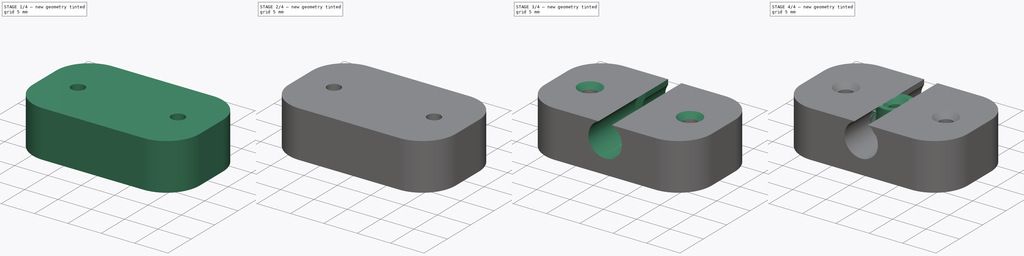
[diagram: build sequence overview — one tinted view per stage of 4, left to right]
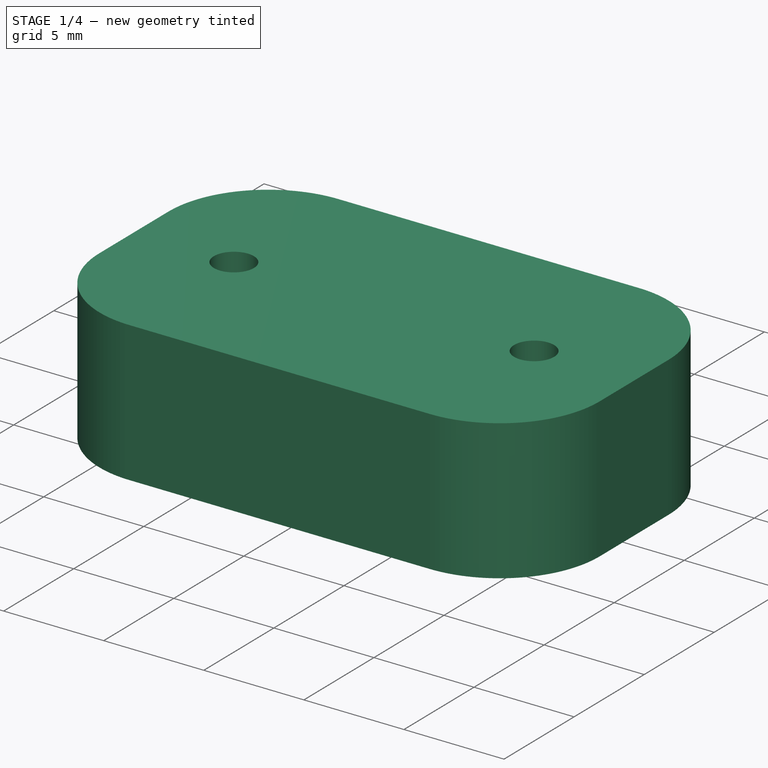
[diagram: stage 1 of 4 — iso view after this stage's code; geometry added in this stage tinted green]
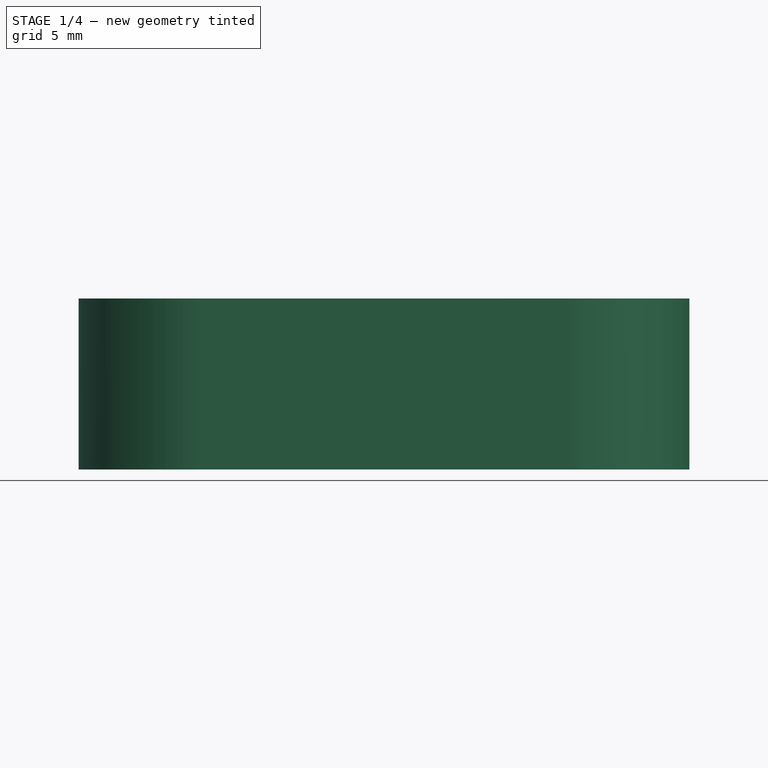
[diagram: stage 1 of 4 — front view after this stage's code; geometry added in this stage tinted green]
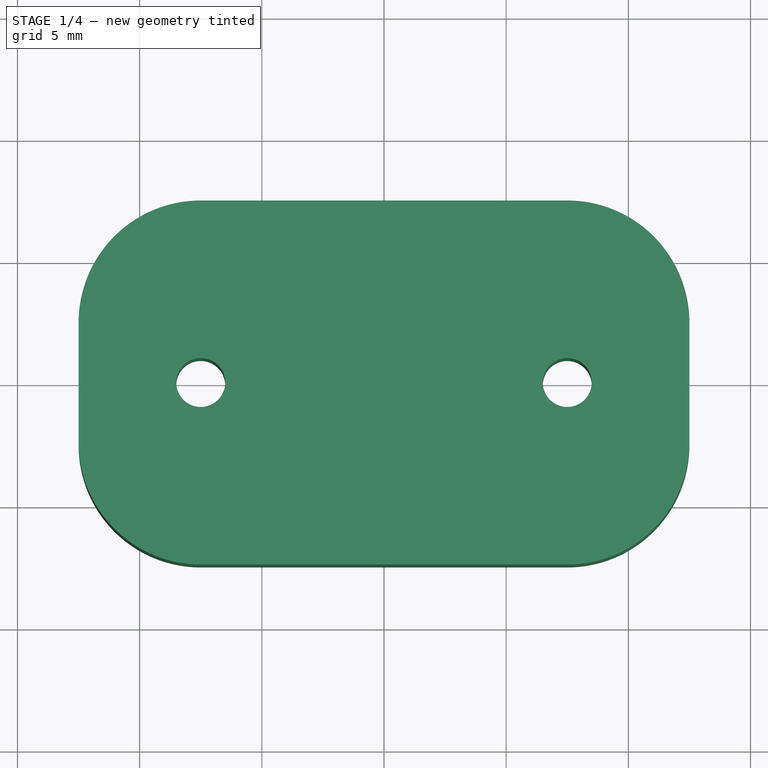
[diagram: stage 1 of 4 — top view after this stage's code; geometry added in this stage tinted green]
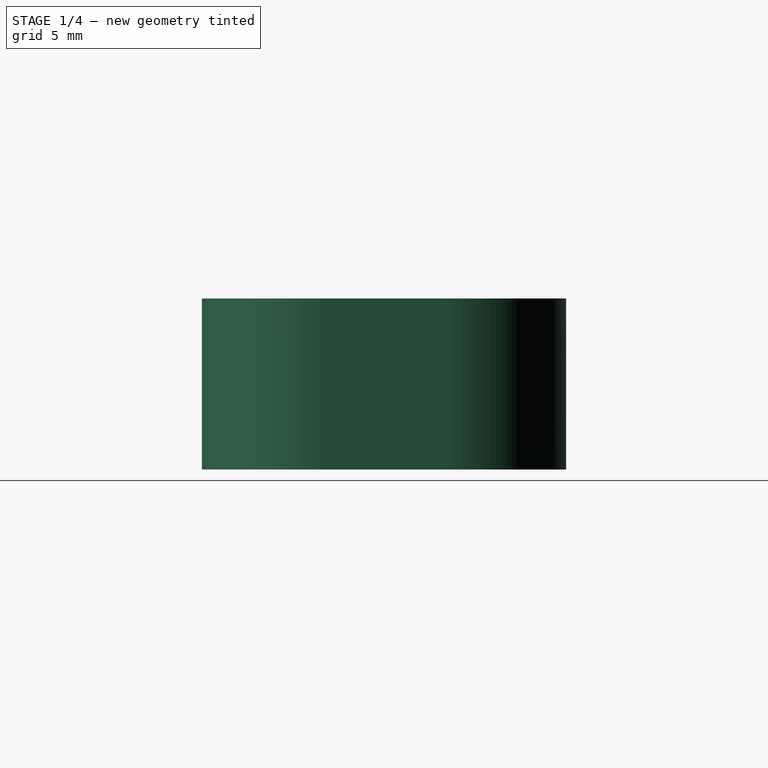
[diagram: stage 1 of 4 — right view after this stage's code; geometry added in this stage tinted green]
FCSTD DOCUMENT  (FreeCAD 0.19R23074 (Git))
Label: cable mount
License: All rights reserved
LicenseURL: http://en.wikipedia.org/wiki/All_rights_reserved
objects: Sketcher::SketchObject×7, PartDesign::Pad×4, PartDesign::Pocket×3, PartDesign::Chamfer×2, PartDesign::Body×2, PartDesign::Fillet×1
note: 29 computed .brp shape members not serialized (recipe doc carries the construction recipe); baked Part::Feature solids carry a one-line shape summary decoded from their .brp

FEATURE [Sketcher::SketchObject] Sketch
  MapMode = 5
  Support = -> [XY_Plane]
  sketch-geometry (5):
    g0: Circle CenterX=0 CenterY=0 CenterZ=0 NormalX=0 NormalY=0 NormalZ=1 AngleXU=0 Radius=1
    g1: ArcOfCircle CenterX=0 CenterY=0 CenterZ=0 NormalX=0 NormalY=0 NormalZ=1 AngleXU=0 Radius=2.5 StartAngle=4.06889 EndAngle=8.49748
    g2: LineSegment StartX=-6.5 StartY=2 StartZ=0 EndX=-1.5 EndY=2 EndZ=0
    g3: LineSegment StartX=-1.5 StartY=-2 StartZ=0 EndX=-6.5 EndY=-2 EndZ=0
    g4: LineSegment StartX=-6.5 StartY=-2 StartZ=0 EndX=-6.5 EndY=2 EndZ=0
  constraints (13):
    c: Coincident(g-1,g0)
    c: Diameter(g0) = 2
    c: Coincident(g1,g0)
    c: Diameter(g1) = 5
    c: Coincident(g3,g4)
    c: Coincident(g4,g2)
    c: Horizontal(g2)
    c: Horizontal(g3)
    c: Symmetric(g2,g3,g-1)
    c: Coincident(g1,g2)
    c: Coincident(g3,g1)
    c: DistanceY(g4,g4) = 4
    c: DistanceX(g2,g2) = 5
FEATURE [PartDesign::Pad] Pad
  Direction = (1,1,1)
  Length = 2
  Length2 = 100
  Profile = -> Sketch
  Refine = true
  Type = 0
FEATURE [PartDesign::Body] Body
  Group = -> [Sketch,Pad,Sketch001,Pad001,Chamfer,Sketch002,Pad002,Sketch003,Pocket,Fillet]
  Origin = -> Origin
  Tip = -> Fillet
FEATURE [Sketcher::SketchObject] Sketch004
  MapMode = 5
  Support = -> [XY_Plane001]
  sketch-geometry (10):
    g0: LineSegment StartX=-7.5 StartY=-7.4516 StartZ=0 EndX=7.5 EndY=-7.4516 EndZ=0
    g1: LineSegment StartX=-7.5 StartY=7.4516 StartZ=0 EndX=7.5 EndY=7.4516 EndZ=0
    g2: Circle CenterX=-7.5 CenterY=-2e-16 CenterZ=0 NormalX=0 NormalY=0 NormalZ=1 AngleXU=0 Radius=1
    g3: Circle CenterX=7.5 CenterY=-2e-16 CenterZ=0 NormalX=0 NormalY=0 NormalZ=1 AngleXU=0 Radius=1
    g4: ArcOfCircle CenterX=7.5 CenterY=2.45162 CenterZ=0 NormalX=0 NormalY=0 NormalZ=1 AngleXU=0 Radius=4.99998 StartAngle=0 EndAngle=1.5708
    g5: ArcOfCircle CenterX=7.5 CenterY=-2.45162 CenterZ=0 NormalX=0 NormalY=0 NormalZ=1 AngleXU=0 Radius=4.99998 StartAngle=4.71239 EndAngle=6.28319
    g6: ArcOfCircle CenterX=-7.50002 CenterY=-2.45162 CenterZ=0 NormalX=0 NormalY=0 NormalZ=1 AngleXU=0 Radius=4.99998 StartAngle=3.14159 EndAngle=4.71239
    g7: ArcOfCircle CenterX=-7.50002 CenterY=2.45162 CenterZ=0 NormalX=0 NormalY=0 NormalZ=1 AngleXU=0 Radius=4.99998 StartAngle=1.57079 EndAngle=3.14159
    g8: LineSegment StartX=-12.5 StartY=2.45162 StartZ=0 EndX=-12.5 EndY=-2.45162 EndZ=0
    g9: LineSegment StartX=12.5 StartY=2.45162 StartZ=0 EndX=12.5 EndY=-2.45162 EndZ=0
  constraints (30):
    c: Horizontal(g0)
    c: Diameter(g3) = 2
    c: Equal(g3,g2)
    c: Symmetric(g1,g0,g-1)
    c: Horizontal(g1)
    c: Vertical(g1,g3)
    c: Vertical(g1,g2)
    c: Symmetric(g2,g3,g-2)
    c: DistanceX(g2,g3) = 15
    c: Vertical(g2,g0)
    c: Coincident(g4,g1)
    c: Coincident(g5,g0)
    c: Coincident(g6,g0)
    c: Coincident(g7,g1)
    c: Equal(g4,g5)
    c: Equal(g5,g6)
    c: Vertical(g1,g4)
    c: Vertical(g4,g5)
    c: Horizontal(g4,g4)
    c: Horizontal(g4,g7)
    c: Horizontal(g7,g7)
    c: Vertical(g7,g6)
    c: Horizontal(g6,g6)
    c: Horizontal(g5,g5)
    c: Coincident(g8,g7)
    c: Coincident(g8,g6)
    c: Vertical(g8)
    c: Coincident(g9,g4)
    c: Coincident(g9,g5)
    c: DistanceX(g7,g2) = 5
FEATURE [PartDesign::Pad] Pad003
  Direction = (1,1,1)
  Length = 7
  Length2 = 100
  Profile = -> Sketch004
  Refine = true
  Type = 0
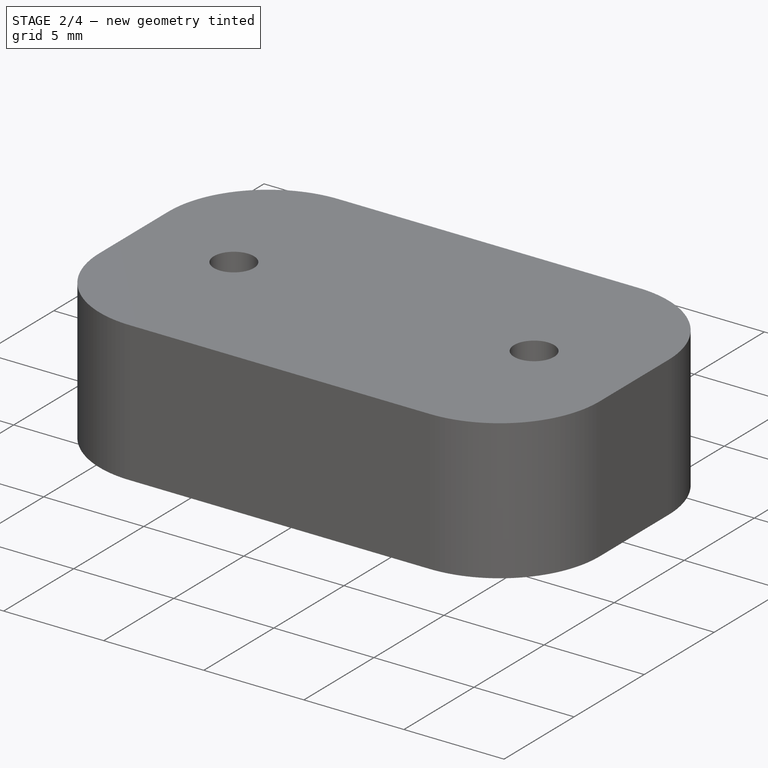
[diagram: stage 2 of 4 — iso view after this stage's code; geometry added in this stage tinted green]
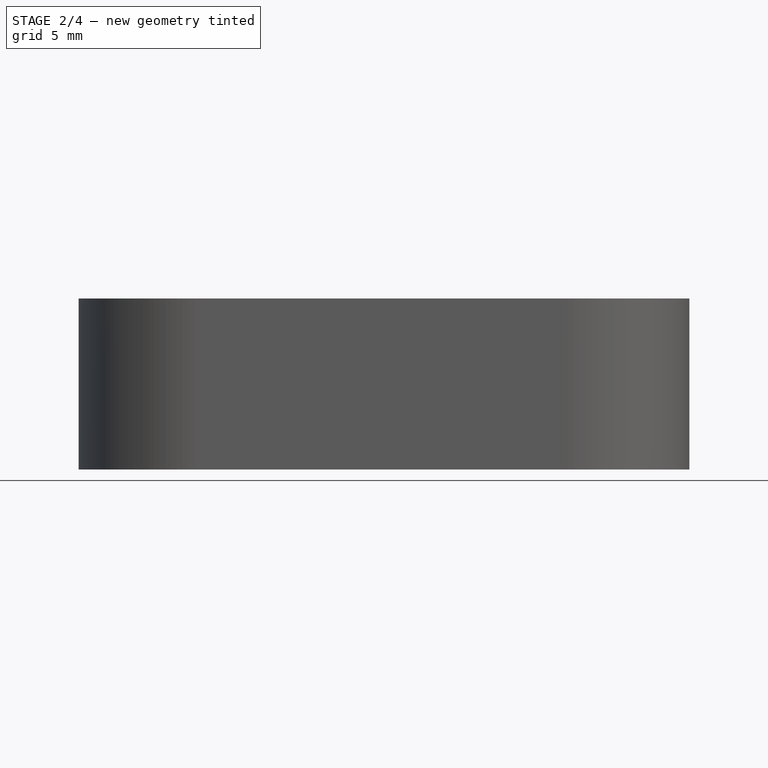
[diagram: stage 2 of 4 — front view after this stage's code; geometry added in this stage tinted green]
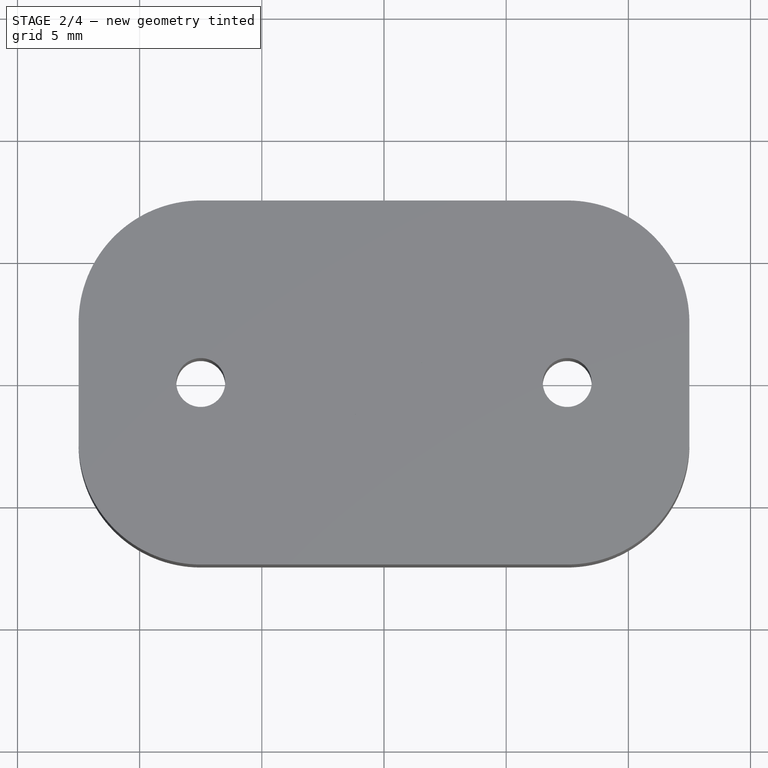
[diagram: stage 2 of 4 — top view after this stage's code; geometry added in this stage tinted green]
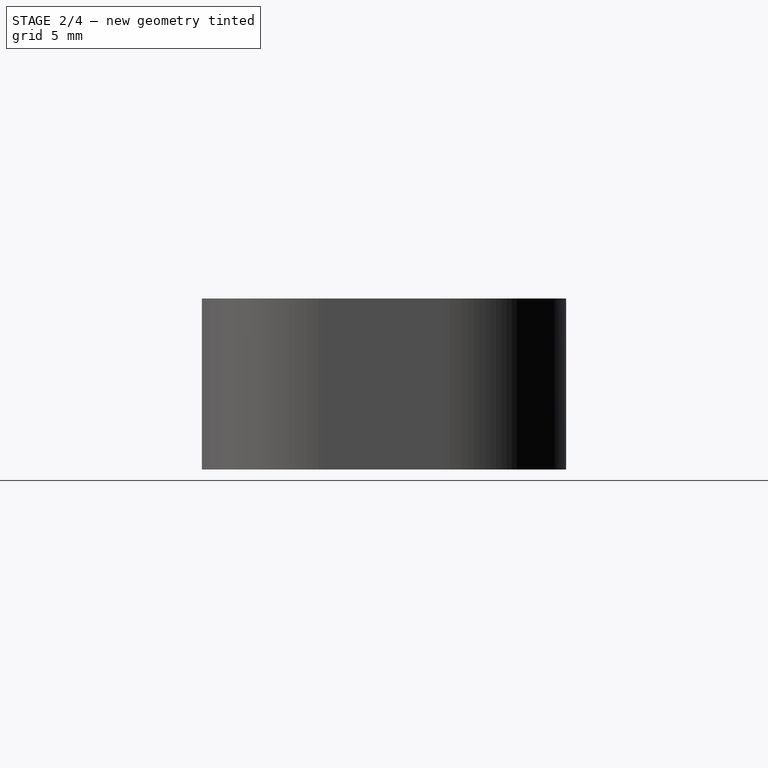
[diagram: stage 2 of 4 — right view after this stage's code; geometry added in this stage tinted green]
FEATURE [Sketcher::SketchObject] Sketch001
  ExternalGeometry = -> [Pad]
  MapMode = 5
  Placement = pos=(0,0,2) rot=(0,0,1;0rad)
  Support = -> [Pad]
  sketch-geometry (2):
    g0: Circle CenterX=0 CenterY=0 CenterZ=0 NormalX=0 NormalY=0 NormalZ=1 AngleXU=0 Radius=1
    g1: Circle CenterX=0 CenterY=0 CenterZ=0 NormalX=0 NormalY=0 NormalZ=1 AngleXU=0 Radius=2.5
  constraints (4):
    c: Coincident(g0,g-1)
    c: Coincident(g1,g0)
    c: Equal(g0,g-3)
    c: Equal(g1,g-4)
FEATURE [PartDesign::Pad] Pad001
  BaseFeature = -> Pad
  Direction = (1,1,1)
  Length = 5
  Length2 = 100
  Profile = -> Sketch001
  Refine = true
  Type = 0
FEATURE [PartDesign::Chamfer] Chamfer
  Angle = 45
  Base = -> Pad001 [Edge17]
  BaseFeature = -> Pad001
  ChamferType = 0
  FlipDirection = false
  Refine = true
  Size = 0.75
  Size2 = 1
  SupportTransform = false
FEATURE [Sketcher::SketchObject] Sketch002
  ExternalGeometry = -> [Chamfer]
  MapMode = 5
  Placement = pos=(0,0,2) rot=(0,0,1;0rad)
  Support = -> [Chamfer]
  sketch-geometry (4):
    g0: LineSegment StartX=-6.5 StartY=2 StartZ=0 EndX=-1.5 EndY=2 EndZ=0
    g1: LineSegment StartX=-1.5 StartY=2 StartZ=0 EndX=-1.5 EndY=-2 EndZ=0
    g2: LineSegment StartX=-1.5 StartY=-2 StartZ=0 EndX=-6.5 EndY=-2 EndZ=0
    g3: LineSegment StartX=-6.5 StartY=-2 StartZ=0 EndX=-6.5 EndY=2 EndZ=0
  constraints (10):
    c: Coincident(g0,g1)
    c: Coincident(g1,g2)
    c: Coincident(g2,g3)
    c: Coincident(g3,g0)
    c: Horizontal(g0)
    c: Horizontal(g2)
    c: Vertical(g1)
    c: Vertical(g3)
    c: Coincident(g0,g-3)
    c: Coincident(g1,g-4)
FEATURE [PartDesign::Pad] Pad002
  BaseFeature = -> Chamfer
  Direction = (1,1,1)
  Length = 4
  Length2 = 100
  Profile = -> Sketch002
  Refine = true
  Type = 0
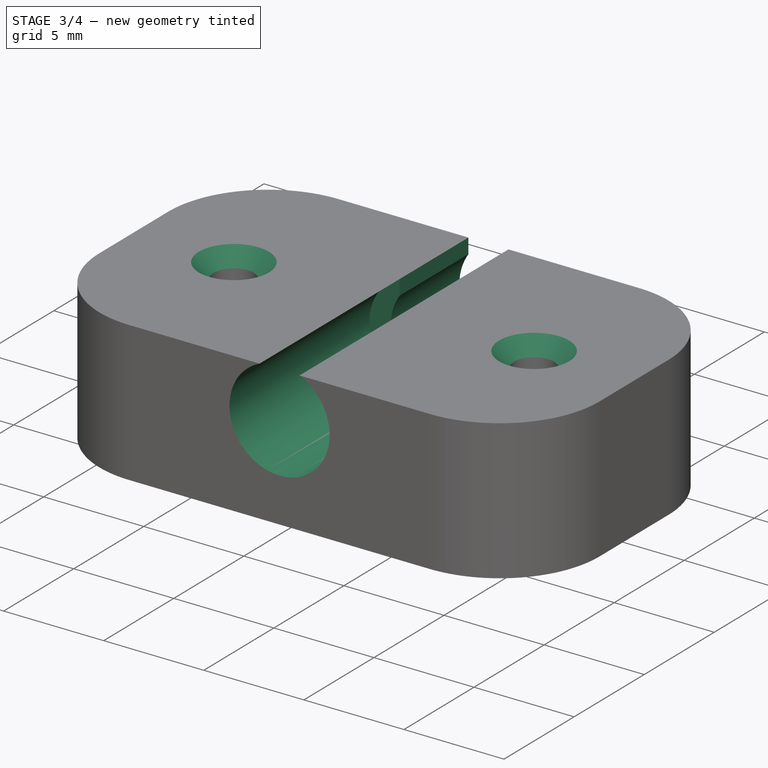
[diagram: stage 3 of 4 — iso view after this stage's code; geometry added in this stage tinted green]
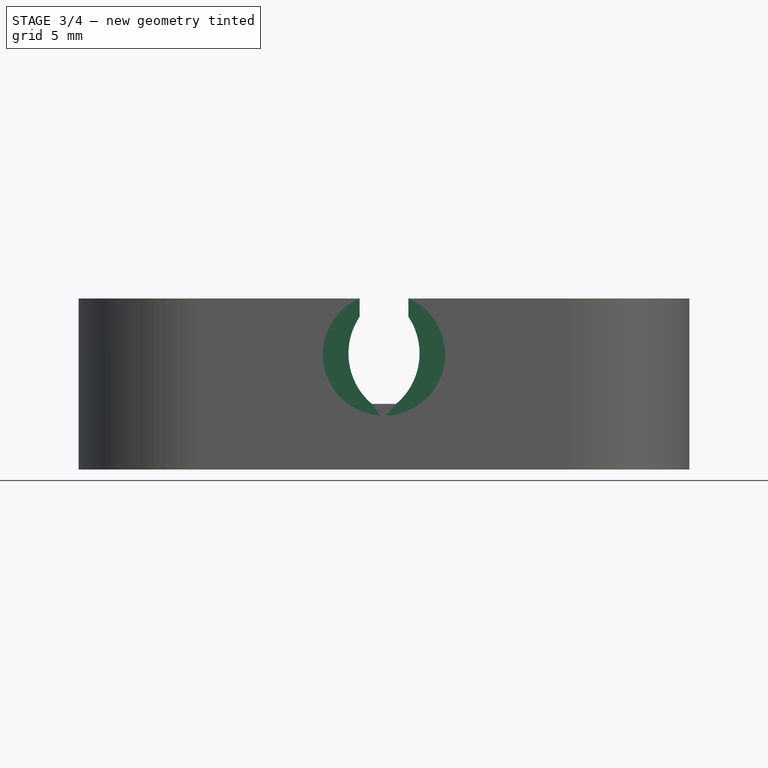
[diagram: stage 3 of 4 — front view after this stage's code; geometry added in this stage tinted green]
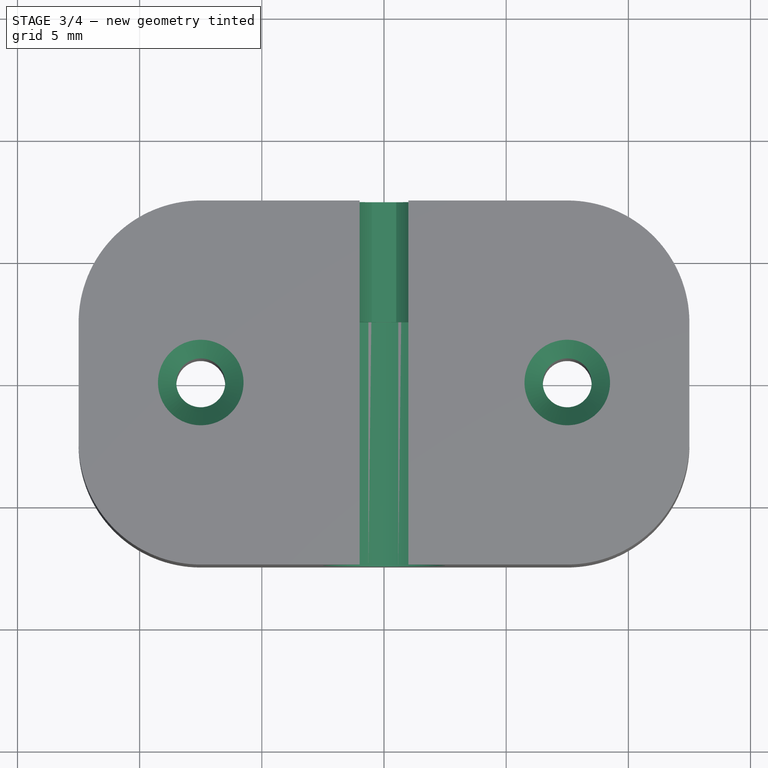
[diagram: stage 3 of 4 — top view after this stage's code; geometry added in this stage tinted green]
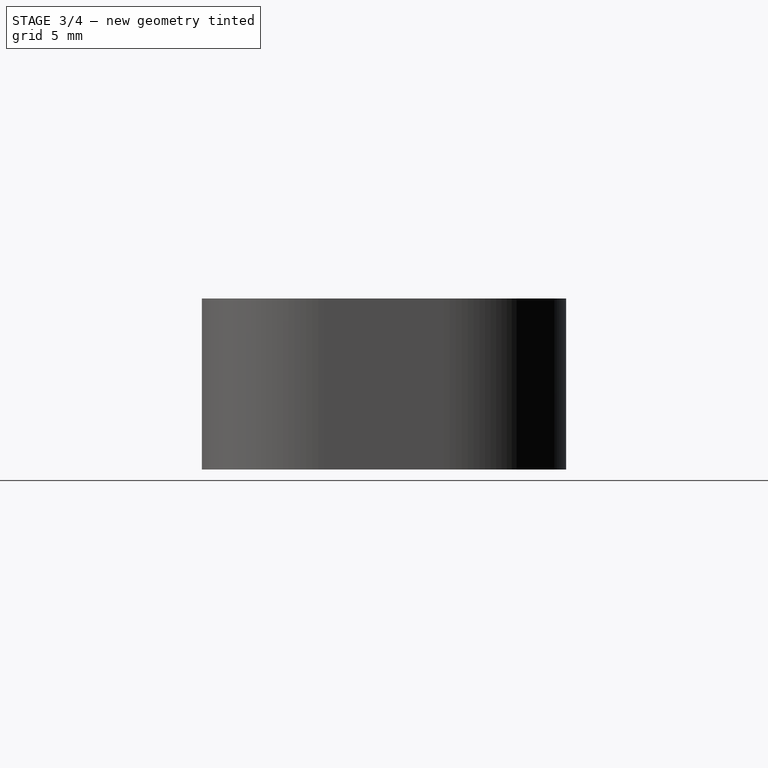
[diagram: stage 3 of 4 — right view after this stage's code; geometry added in this stage tinted green]
FEATURE [Sketcher::SketchObject] Sketch005
  ExternalGeometry = -> [Pad003]
  MapMode = 5
  Placement = pos=(0,-2,0) rot=(1,0,0;1.5708rad)
  Support = -> [Pad002]
  sketch-geometry (7):
    g0: LineSegment StartX=-1 StartY=7 StartZ=0 EndX=-1 EndY=6.25 EndZ=0
    g1: LineSegment StartX=-1 StartY=7 StartZ=0 EndX=1 EndY=7 EndZ=0
    g2: ArcOfCircle CenterX=-1.25 CenterY=4.75 CenterZ=0 NormalX=0 NormalY=0 NormalZ=1 AngleXU=0 Radius=2.70416 StartAngle=5.41623 EndAngle=6.87119
    g3: ArcOfCircle CenterX=1.25 CenterY=4.75 CenterZ=0 NormalX=0 NormalY=0 NormalZ=1 AngleXU=0 Radius=2.70416 StartAngle=2.55359 EndAngle=4.00855
    g4: LineSegment StartX=-0.5 StartY=2.68845 StartZ=0 EndX=0.5 EndY=2.68845 EndZ=0
    g5: GeomPoint X=-1 Y=3.25 Z=0
    g6: LineSegment StartX=1 StartY=7 StartZ=0 EndX=1 EndY=6.25 EndZ=0
  constraints (20):
    c: Vertical(g0)
    c: Coincident(g1,g0)
    c: DistanceX(g1,g1) = 2
    c: DistanceY(g0,g0) = 0.75
    c: Symmetric(g1,g0,g-2)
    c: Coincident(g3,g0)
    c: Coincident(g4,g3)
    c: Coincident(g4,g2)
    c: DistanceX(g4,g4) = 1
    c: PointOnObject(g5,g3)
    c: Vertical(g5,g0)
    c: DistanceY(g5,g0) = 3
    c: Symmetric(g2,g3,g-2)
    c: Equal(g3,g2)
    c: DistanceX(g2,g3) = 2.5
    c: Horizontal(g3,g2)
    c: Coincident(g6,g1)
    c: Coincident(g6,g2)
    c: PointOnObject(g1,g-3)
    c: Vertical(g6)
FEATURE [PartDesign::Pocket] Pocket001
  BaseFeature = -> Pad003
  Length = 5
  Length2 = 100
  Midplane = true
  Profile = -> Sketch005
  Refine = true
  Type = 1
FEATURE [Sketcher::SketchObject] Sketch006
  ExternalGeometry = -> [Pocket001]
  MapMode = 5
  Placement = pos=(0,-7.4516,0) rot=(1,0,0;1.5708rad)
  Support = -> [Pocket001]
  sketch-geometry (1):
    g0: Circle CenterX=0 CenterY=4.70871 CenterZ=0 NormalX=0 NormalY=0 NormalZ=1 AngleXU=0 Radius=2.5
  constraints (3):
    c: PointOnObject(g0,g-2)
    c: Diameter(g0) = 5
    c: PointOnObject(g-3,g0)
FEATURE [PartDesign::Pocket] Pocket002
  BaseFeature = -> Pocket001
  Length = 10
  Length2 = 100
  Profile = -> Sketch006
  Refine = true
  Type = 0
FEATURE [PartDesign::Chamfer] Chamfer001
  Angle = 45
  Base = -> Pocket002 [Edge36,Edge28]
  BaseFeature = -> Pocket002
  ChamferType = 0
  FlipDirection = false
  Refine = true
  Size = 0.75
  Size2 = 1
  SupportTransform = false
FEATURE [PartDesign::Body] Body001
  Group = -> [Sketch004,Pad003,Sketch005,Pocket001,Sketch006,Pocket002,Chamfer001]
  Origin = -> Origin001
  Tip = -> Chamfer001
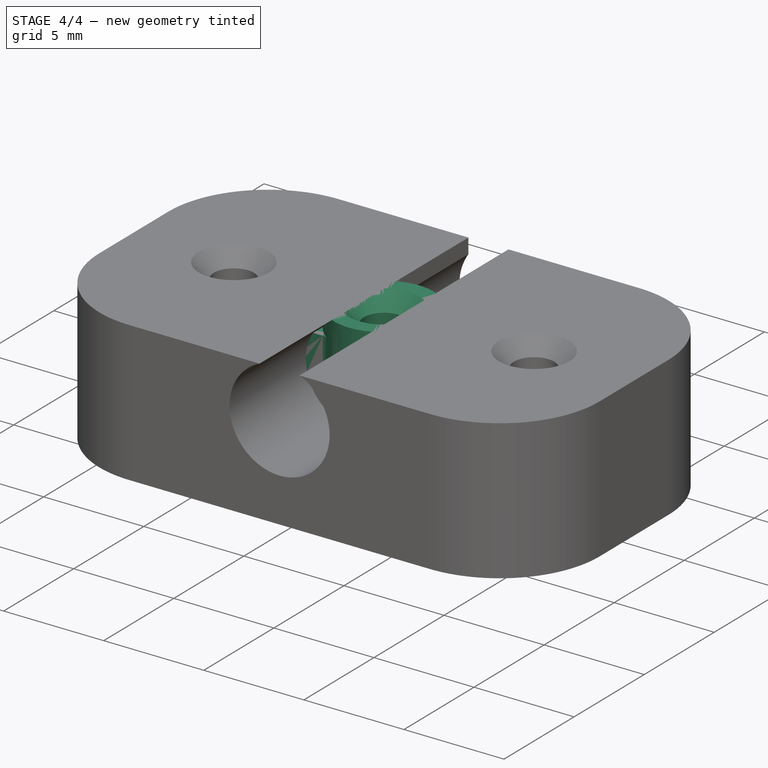
[diagram: stage 4 of 4 — iso view after this stage's code; geometry added in this stage tinted green]
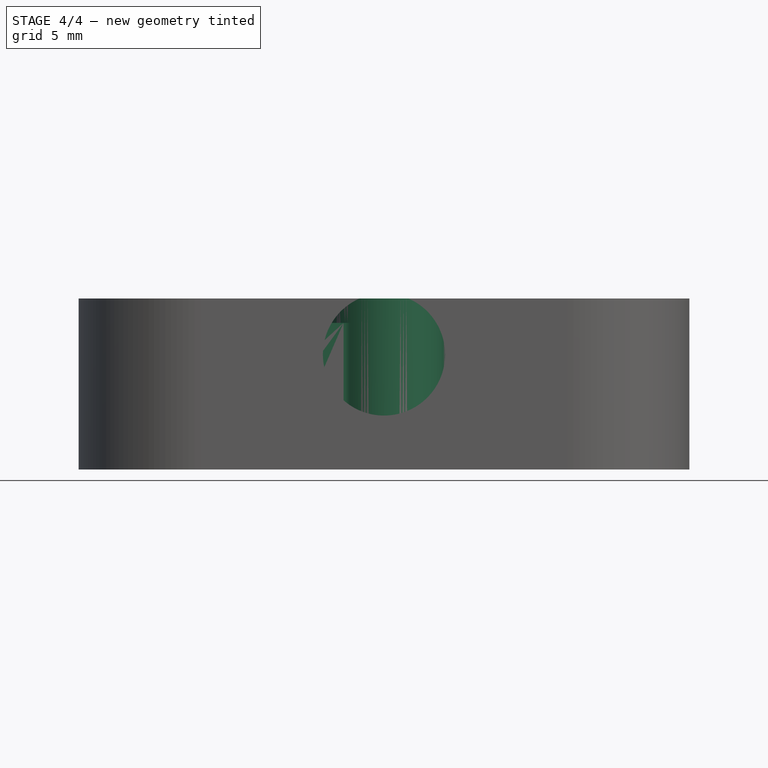
[diagram: stage 4 of 4 — front view after this stage's code; geometry added in this stage tinted green]
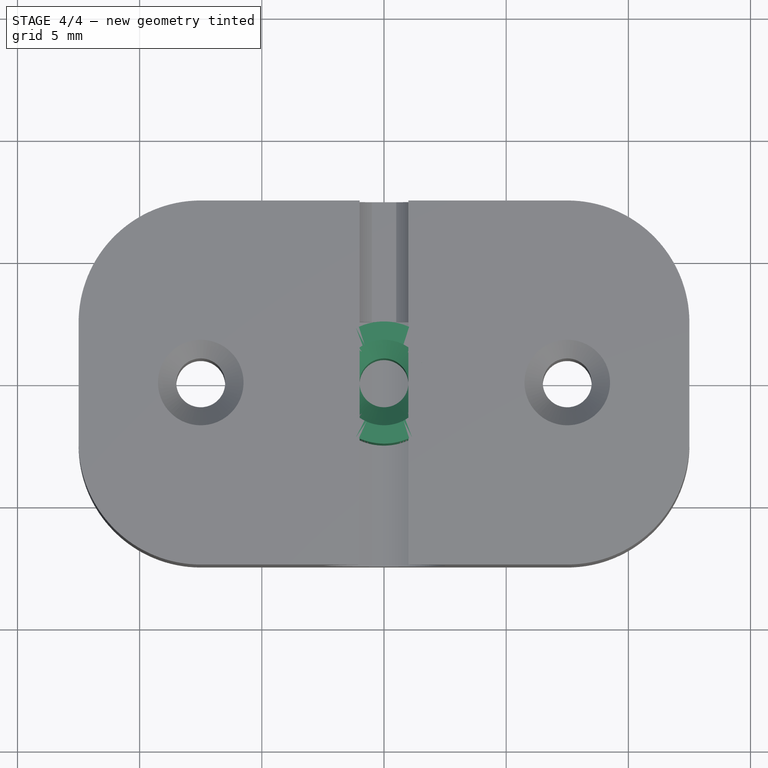
[diagram: stage 4 of 4 — top view after this stage's code; geometry added in this stage tinted green]
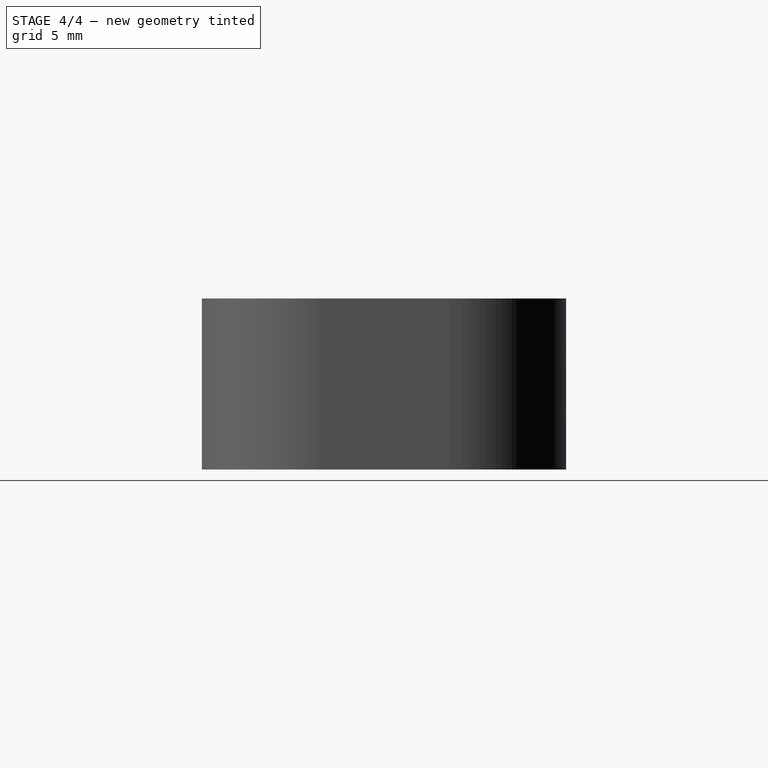
[diagram: stage 4 of 4 — right view after this stage's code; geometry added in this stage tinted green]
FEATURE [Sketcher::SketchObject] Sketch003
  ExternalGeometry = -> [Pad002]
  MapMode = 5
  Placement = pos=(0,-2,0) rot=(1,0,0;1.5708rad)
  Support = -> [Pad002]
  sketch-geometry (8):
    g0: LineSegment StartX=-4.65 StartY=6 StartZ=0 EndX=-4.65 EndY=5.25 EndZ=0
    g1: LineSegment StartX=-3.35 StartY=6 StartZ=0 EndX=-3.35 EndY=5.25 EndZ=0
    g2: ArcOfCircle CenterX=-3.35 CenterY=3.75 CenterZ=0 NormalX=0 NormalY=0 NormalZ=1 AngleXU=0 Radius=1.98494 StartAngle=2.28489 EndAngle=3.9983
    g3: ArcOfCircle CenterX=-4.65 CenterY=3.75 CenterZ=0 NormalX=0 NormalY=0 NormalZ=1 AngleXU=0 Radius=1.98494 StartAngle=5.42648 EndAngle=7.13989
    g4: LineSegment StartX=-4.65 StartY=2.25 StartZ=0 EndX=-3.35 EndY=2.25 EndZ=0
    g5: LineSegment StartX=-4.65 StartY=6 StartZ=0 EndX=-3.35 EndY=6 EndZ=0
    g6: LineSegment [constr] StartX=-6.5 StartY=6 StartZ=0 EndX=-4.65 EndY=6 EndZ=0
    g7: LineSegment [constr] StartX=-3.35 StartY=6 StartZ=0 EndX=-1.5 EndY=6 EndZ=0
  constraints (24):
    c: PointOnObject(g0,g-3)
    c: Vertical(g0)
    c: PointOnObject(g1,g-3)
    c: Vertical(g1)
    c: Coincident(g2,g0)
    c: Coincident(g3,g1)
    c: Coincident(g4,g2)
    c: Coincident(g4,g3)
    c: Horizontal(g4)
    c: Equal(g2,g3)
    c: Equal(g0,g1)
    c: Coincident(g5,g0)
    c: Coincident(g5,g1)
    c: DistanceX(g5,g5) = 1.3
    c: DistanceY(g0,g0) = 0.75
    c: DistanceY(g2,g0) = 3
    c: Vertical(g2,g0)
    c: Equal(g4,g5)
    c: Coincident(g6,g-3)
    c: Coincident(g6,g0)
    c: Coincident(g7,g1)
    c: Coincident(g7,g-3)
    c: Equal(g7,g6)
    c: Vertical(g2,g1)
FEATURE [PartDesign::Pocket] Pocket
  BaseFeature = -> Pad002
  Length = 5
  Length2 = 100
  Profile = -> Sketch003
  Refine = true
  Type = 1
FEATURE [PartDesign::Fillet] Fillet
  Base = -> Pocket [Edge33,Edge36,Edge37,Edge23,Edge35,Edge34,Edge38,Edge7,Edge5]
  BaseFeature = -> Pocket
  Radius = 0.5
  Refine = true
  SupportTransform = false
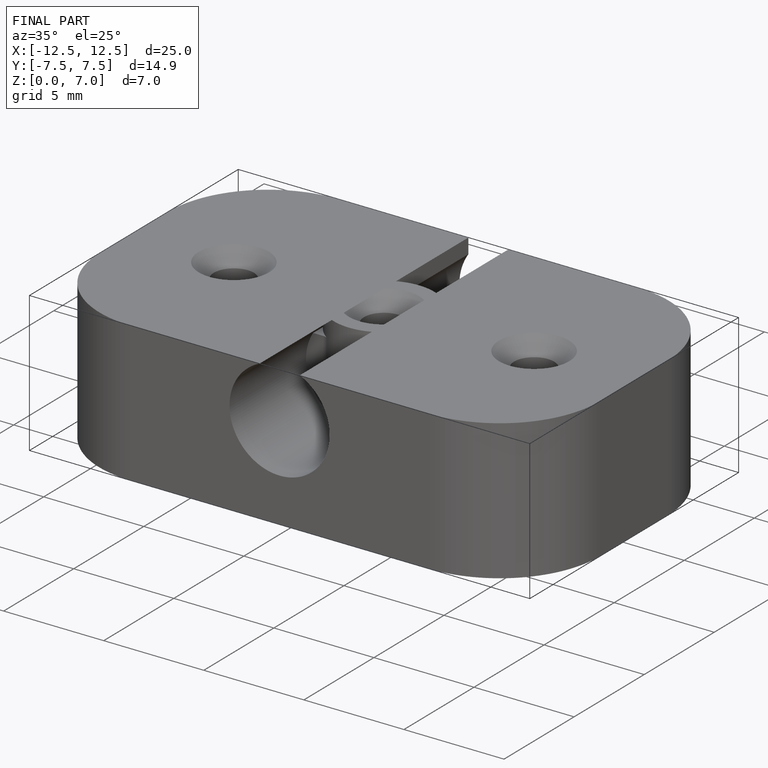
[diagram: finished part — iso view with bounding-box wireframe]
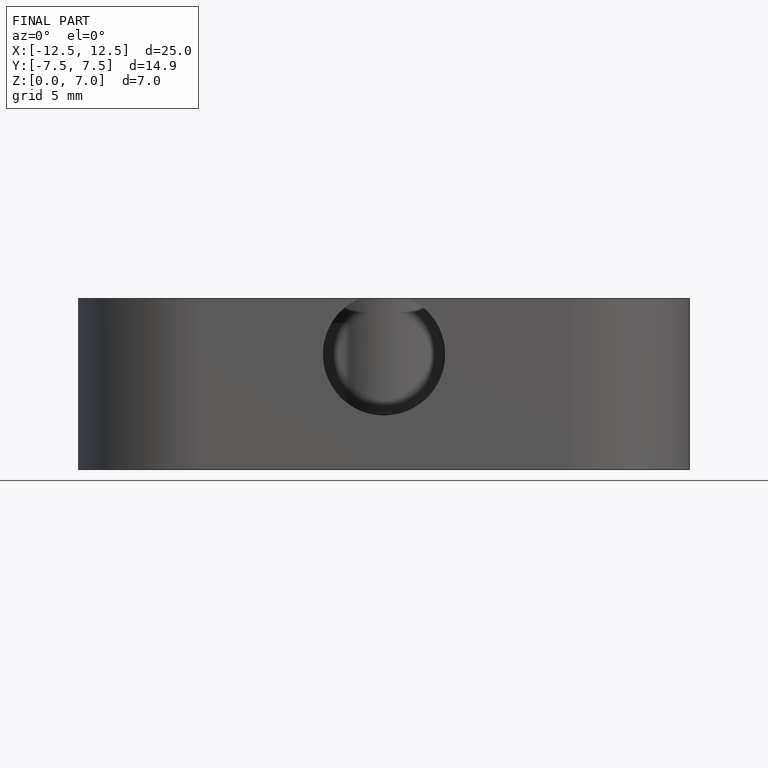
[diagram: finished part — front view with bounding-box wireframe]
